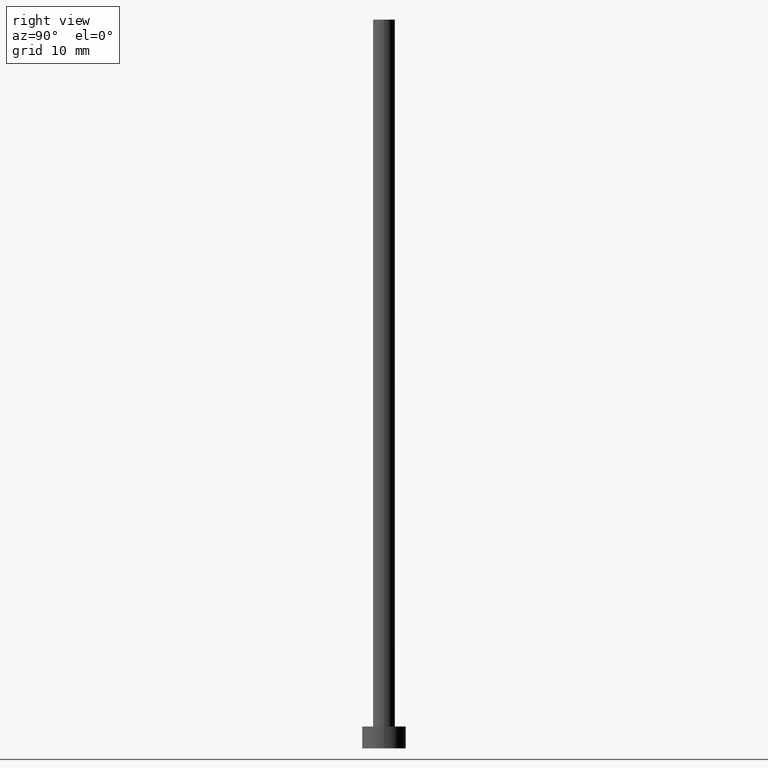
[diagram: clean part render]
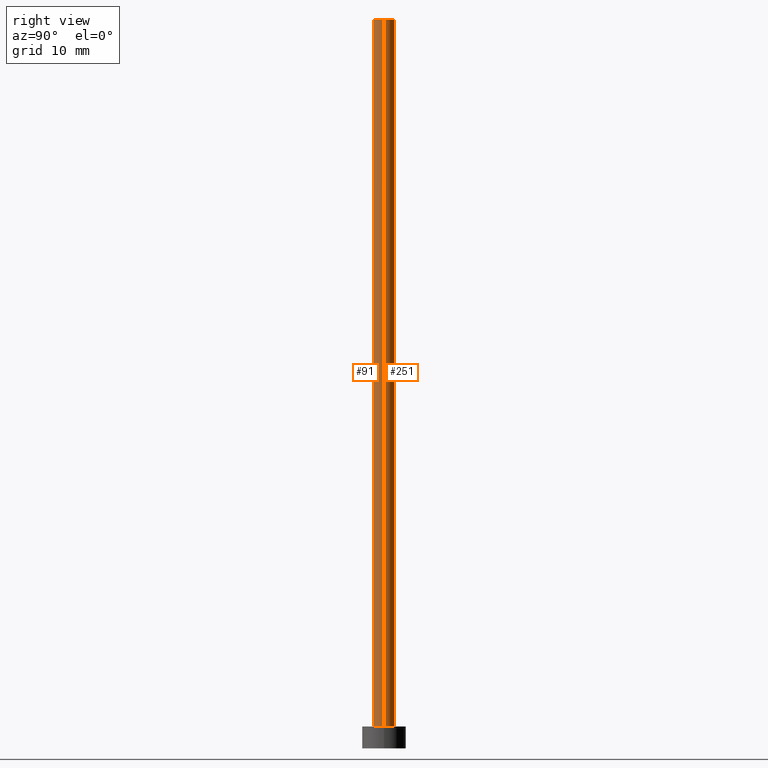
[diagram: same view with one multi-face feature highlighted, each face labeled with its STEP entity id]
A machine part, right view. The highlighted faces form ONE feature: a constant-radius fillet chain: 2 tangent blend faces with common blend radius 1.5 mm. The faces share edges in the B-rep.
Their STEP definitions:
[1] entity #91 (Cylinder):
#3 = CARTESIAN_POINT ( 'NONE',  ( 1.500000000000000222, 1.836970198721029934E-16, 3.000000000000000000 ) ) ;
#7 = VERTEX_POINT ( 'NONE', #3 ) ;
#14 = EDGE_CURVE ( 'NONE', #147, #7, #214, .T. ) ;
#17 = DIRECTION ( 'NONE',  ( 1.000000000000000000, 0.000000000000000000, 0.000000000000000000 ) ) ;
#19 = CARTESIAN_POINT ( 'NONE',  ( 1.500000000000000222, 1.836970198721029934E-16, 100.0000000000000000 ) ) ;
#63 = CARTESIAN_POINT ( 'NONE',  ( -1.500000000000000222, 0.000000000000000000, 3.000000000000000000 ) ) ;
#66 = EDGE_CURVE ( 'NONE', #186, #166, #216, .T. ) ;
#70 = CARTESIAN_POINT ( 'NONE',  ( 0.000000000000000000, 0.000000000000000000, 100.0000000000000000 ) ) ;
#81 = DIRECTION ( 'NONE',  ( 1.000000000000000000, 0.000000000000000000, 0.000000000000000000 ) ) ;
#82 = CARTESIAN_POINT ( 'NONE',  ( 0.000000000000000000, 0.000000000000000000, 100.0000000000000000 ) ) ;
#91 = ADVANCED_FACE ( 'NONE', ( #234 ), #218, .T. ) ;
#93 = ORIENTED_EDGE ( 'NONE', *, *, #103, .F. ) ;
#97 = CIRCLE ( 'NONE', #190, 1.500000000000000222 ) ;
#101 = CARTESIAN_POINT ( 'NONE',  ( -1.500000000000000222, 0.000000000000000000, 100.0000000000000000 ) ) ;
#103 = EDGE_CURVE ( 'NONE', #186, #147, #97, .T. ) ;
#124 = ORIENTED_EDGE ( 'NONE', *, *, #14, .F. ) ;
#133 = DIRECTION ( 'NONE',  ( 0.000000000000000000, 0.000000000000000000, 1.000000000000000000 ) ) ;
#137 = CARTESIAN_POINT ( 'NONE',  ( 1.500000000000000222, 1.836970198721029934E-16, 100.0000000000000000 ) ) ;
#138 = DIRECTION ( 'NONE',  ( -0.000000000000000000, -0.000000000000000000, -1.000000000000000000 ) ) ;
#147 = VERTEX_POINT ( 'NONE', #19 ) ;
#149 = CARTESIAN_POINT ( 'NONE',  ( -1.500000000000000222, 0.000000000000000000, 100.0000000000000000 ) ) ;
#151 = AXIS2_PLACEMENT_3D ( 'NONE', #70, #178, #200 ) ;
#160 = ORIENTED_EDGE ( 'NONE', *, *, #66, .T. ) ;
#162 = ORIENTED_EDGE ( 'NONE', *, *, #172, .T. ) ;
#165 = AXIS2_PLACEMENT_3D ( 'NONE', #193, #133, #17 ) ;
#166 = VERTEX_POINT ( 'NONE', #63 ) ;
#168 = VECTOR ( 'NONE', #138, 1000.000000000000000 ) ;
#172 = EDGE_CURVE ( 'NONE', #166, #7, #177, .T. ) ;
#175 = DIRECTION ( 'NONE',  ( 0.000000000000000000, 0.000000000000000000, 1.000000000000000000 ) ) ;
#177 = CIRCLE ( 'NONE', #165, 1.500000000000000222 ) ;
#178 = DIRECTION ( 'NONE',  ( -0.000000000000000000, -0.000000000000000000, -1.000000000000000000 ) ) ;
#179 = VECTOR ( 'NONE', #180, 1000.000000000000000 ) ;
#180 = DIRECTION ( 'NONE',  ( -0.000000000000000000, -0.000000000000000000, -1.000000000000000000 ) ) ;
#186 = VERTEX_POINT ( 'NONE', #149 ) ;
#190 = AXIS2_PLACEMENT_3D ( 'NONE', #82, #175, #81 ) ;
#193 = CARTESIAN_POINT ( 'NONE',  ( 0.000000000000000000, 0.000000000000000000, 3.000000000000000000 ) ) ;
#200 = DIRECTION ( 'NONE',  ( -1.000000000000000000, 0.000000000000000000, 0.000000000000000000 ) ) ;
#206 = EDGE_LOOP ( 'NONE', ( #124, #93, #160, #162 ) ) ;
#214 = LINE ( 'NONE', #137, #168 ) ;
#216 = LINE ( 'NONE', #101, #179 ) ;
#218 = CYLINDRICAL_SURFACE ( 'NONE', #151, 1.500000000000000222 ) ;
#234 = FACE_OUTER_BOUND ( 'NONE', #206, .T. ) ;
[2] entity #251 (Cylinder):
#2 = DIRECTION ( 'NONE',  ( -0.000000000000000000, -0.000000000000000000, -1.000000000000000000 ) ) ;
#3 = CARTESIAN_POINT ( 'NONE',  ( 1.500000000000000222, 1.836970198721029934E-16, 3.000000000000000000 ) ) ;
#4 = CARTESIAN_POINT ( 'NONE',  ( 0.000000000000000000, 0.000000000000000000, 100.0000000000000000 ) ) ;
#7 = VERTEX_POINT ( 'NONE', #3 ) ;
#11 = ORIENTED_EDGE ( 'NONE', *, *, #66, .F. ) ;
#14 = EDGE_CURVE ( 'NONE', #147, #7, #214, .T. ) ;
#18 = EDGE_CURVE ( 'NONE', #7, #166, #221, .T. ) ;
#19 = CARTESIAN_POINT ( 'NONE',  ( 1.500000000000000222, 1.836970198721029934E-16, 100.0000000000000000 ) ) ;
#29 = DIRECTION ( 'NONE',  ( -1.000000000000000000, 0.000000000000000000, 0.000000000000000000 ) ) ;
#49 = AXIS2_PLACEMENT_3D ( 'NONE', #71, #136, #182 ) ;
#63 = CARTESIAN_POINT ( 'NONE',  ( -1.500000000000000222, 0.000000000000000000, 3.000000000000000000 ) ) ;
#66 = EDGE_CURVE ( 'NONE', #186, #166, #216, .T. ) ;
#71 = CARTESIAN_POINT ( 'NONE',  ( 0.000000000000000000, 0.000000000000000000, 100.0000000000000000 ) ) ;
#86 = DIRECTION ( 'NONE',  ( 0.000000000000000000, 0.000000000000000000, 1.000000000000000000 ) ) ;
#101 = CARTESIAN_POINT ( 'NONE',  ( -1.500000000000000222, 0.000000000000000000, 100.0000000000000000 ) ) ;
#109 = ORIENTED_EDGE ( 'NONE', *, *, #14, .T. ) ;
#116 = CARTESIAN_POINT ( 'NONE',  ( 0.000000000000000000, 0.000000000000000000, 3.000000000000000000 ) ) ;
#136 = DIRECTION ( 'NONE',  ( 0.000000000000000000, 0.000000000000000000, 1.000000000000000000 ) ) ;
#137 = CARTESIAN_POINT ( 'NONE',  ( 1.500000000000000222, 1.836970198721029934E-16, 100.0000000000000000 ) ) ;
#138 = DIRECTION ( 'NONE',  ( -0.000000000000000000, -0.000000000000000000, -1.000000000000000000 ) ) ;
#147 = VERTEX_POINT ( 'NONE', #19 ) ;
#149 = CARTESIAN_POINT ( 'NONE',  ( -1.500000000000000222, 0.000000000000000000, 100.0000000000000000 ) ) ;
#166 = VERTEX_POINT ( 'NONE', #63 ) ;
#168 = VECTOR ( 'NONE', #138, 1000.000000000000000 ) ;
#179 = VECTOR ( 'NONE', #180, 1000.000000000000000 ) ;
#180 = DIRECTION ( 'NONE',  ( -0.000000000000000000, -0.000000000000000000, -1.000000000000000000 ) ) ;
#182 = DIRECTION ( 'NONE',  ( 1.000000000000000000, 0.000000000000000000, 0.000000000000000000 ) ) ;
#186 = VERTEX_POINT ( 'NONE', #149 ) ;
#191 = CIRCLE ( 'NONE', #49, 1.500000000000000222 ) ;
#198 = CYLINDRICAL_SURFACE ( 'NONE', #201, 1.500000000000000222 ) ;
#201 = AXIS2_PLACEMENT_3D ( 'NONE', #4, #2, #29 ) ;
#205 = ORIENTED_EDGE ( 'NONE', *, *, #250, .F. ) ;
#213 = AXIS2_PLACEMENT_3D ( 'NONE', #116, #86, #236 ) ;
#214 = LINE ( 'NONE', #137, #168 ) ;
#216 = LINE ( 'NONE', #101, #179 ) ;
#221 = CIRCLE ( 'NONE', #213, 1.500000000000000222 ) ;
#223 = ORIENTED_EDGE ( 'NONE', *, *, #18, .T. ) ;
#236 = DIRECTION ( 'NONE',  ( 1.000000000000000000, 0.000000000000000000, 0.000000000000000000 ) ) ;
#238 = FACE_OUTER_BOUND ( 'NONE', #244, .T. ) ;
#244 = EDGE_LOOP ( 'NONE', ( #205, #109, #223, #11 ) ) ;
#250 = EDGE_CURVE ( 'NONE', #147, #186, #191, .T. ) ;
#251 = ADVANCED_FACE ( 'NONE', ( #238 ), #198, .T. ) ;